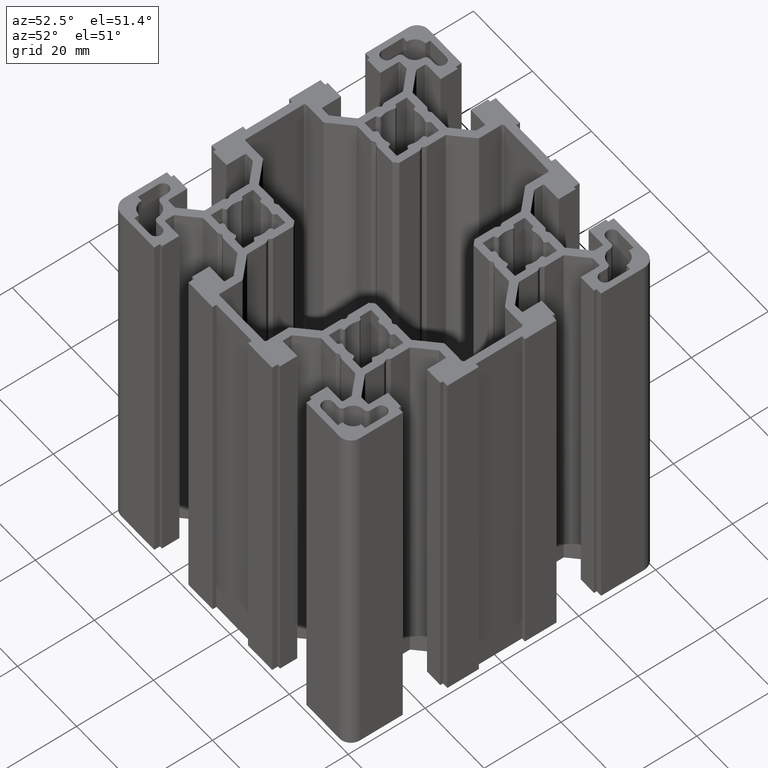
[diagram: clean part render]
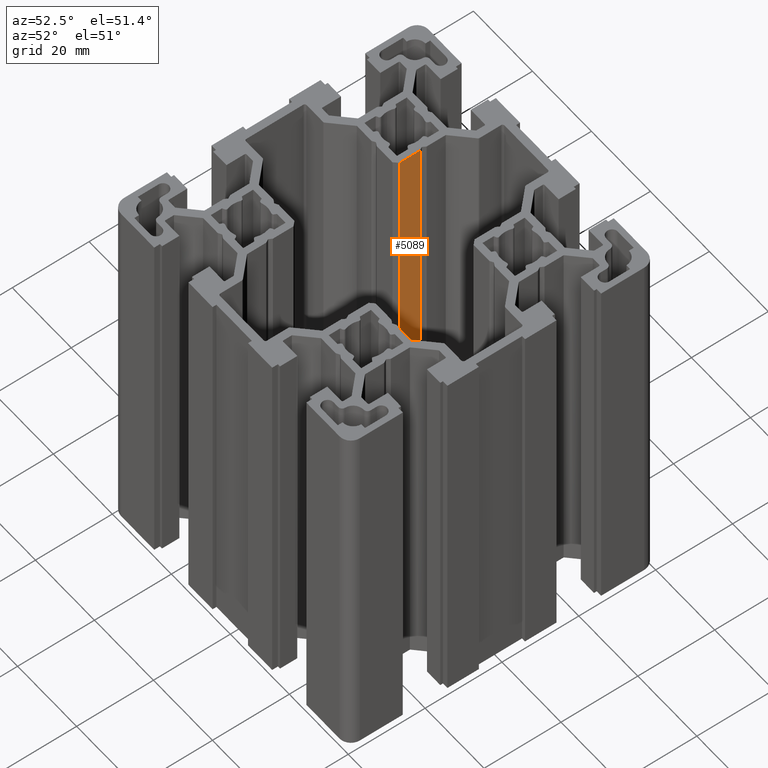
[diagram: same view with one face highlighted and labeled with its STEP entity id]
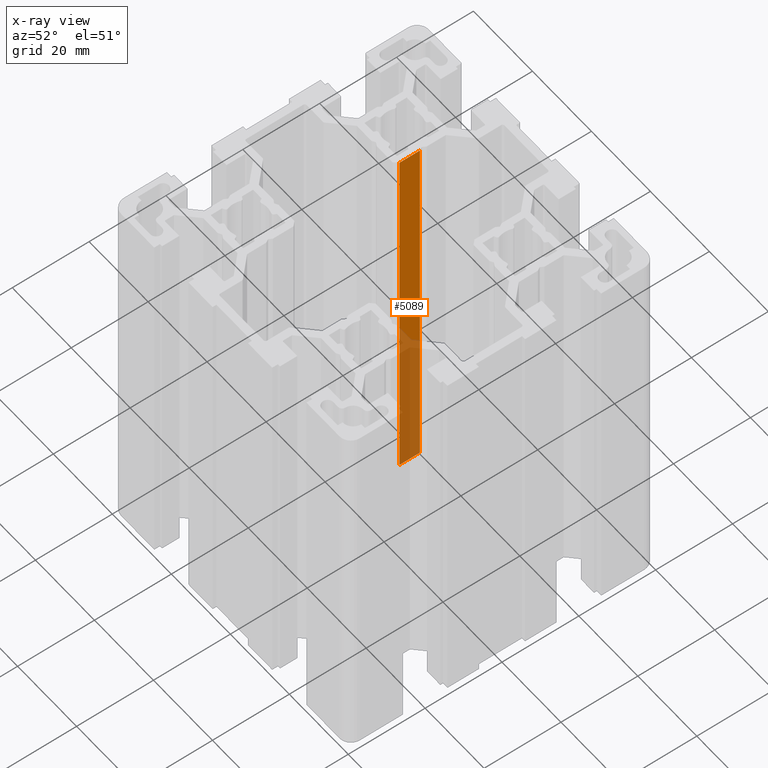
[diagram: x-ray of the same camera — body ghosted, the highlighted face saturated]
A machine part, auxiliary view. The second image highlights one B-rep face of the part: STEP entity #5089.
The next image is the same camera in x-ray: the body ghosted, the highlighted face saturated — about 40% of this face is hidden behind the body in this view.
In plain terms, the highlighted planar face has unit normal (1, 0, -0).
Its self-contained STEP definition (entity closure, byte-faithful):
#3004 = VERTEX_POINT ( 'NONE', #9092 ) ;
#3006 = VERTEX_POINT ( 'NONE', #9107 ) ;
#3012 = EDGE_CURVE ( 'NONE', #3006, #3004, #8181, .T. ) ;
#5052 = EDGE_CURVE ( 'NONE', #6267, #3006, #12111, .T. ) ;
#5088 = ORIENTED_EDGE ( 'NONE', *, *, #3012, .F. ) ;
#5089 = ADVANCED_FACE ( 'NONE', ( #12178 ), #12172, .T. ) ;
#5092 = ORIENTED_EDGE ( 'NONE', *, *, #5052, .F. ) ;
#5093 = EDGE_CURVE ( 'NONE', #6279, #3004, #12226, .T. ) ;
#5094 = ORIENTED_EDGE ( 'NONE', *, *, #6278, .T. ) ;
#5101 = ORIENTED_EDGE ( 'NONE', *, *, #5093, .T. ) ;
#5105 = EDGE_LOOP ( 'NONE', ( #5088, #5092, #5094, #5101 ) ) ;
#6267 = VERTEX_POINT ( 'NONE', #13966 ) ;
#6278 = EDGE_CURVE ( 'NONE', #6267, #6279, #13944, .T. ) ;
#6279 = VERTEX_POINT ( 'NONE', #13945 ) ;
#8181 = LINE ( 'NONE', #8397, #8602 ) ;
#8397 = CARTESIAN_POINT ( 'NONE',  ( -12.74999974236036100, 19.13397364254124300, 0.0000000000000000000 ) ) ;
#8602 = VECTOR ( 'NONE', #8630, 1000.000000000000000 ) ;
#8630 = DIRECTION ( 'NONE',  ( 0.0000000000000000000, -1.000000000000000000, 0.0000000000000000000 ) ) ;
#9092 = CARTESIAN_POINT ( 'NONE',  ( -12.74999974236036100, 13.75000000000000000, 0.0000000000000000000 ) ) ;
#9107 = CARTESIAN_POINT ( 'NONE',  ( -12.74999974236036100, 19.13397364254124300, 0.0000000000000000000 ) ) ;
#11681 = DIRECTION ( 'NONE',  ( -0.0000000000000000000, 0.0000000000000000000, -1.000000000000000000 ) ) ;
#12111 = LINE ( 'NONE', #12165, #12164 ) ;
#12139 = AXIS2_PLACEMENT_3D ( 'NONE', #12183, #12179, #11681 ) ;
#12163 = DIRECTION ( 'NONE',  ( -0.0000000000000000000, -0.0000000000000000000, -1.000000000000000000 ) ) ;
#12164 = VECTOR ( 'NONE', #12163, 1000.000000000000000 ) ;
#12165 = CARTESIAN_POINT ( 'NONE',  ( -12.74999974236036100, 19.13397364254124300, 100.0000000000000000 ) ) ;
#12172 = PLANE ( 'NONE',  #12139 ) ;
#12178 = FACE_OUTER_BOUND ( 'NONE', #5105, .T. ) ;
#12179 = DIRECTION ( 'NONE',  ( 1.000000000000000000, 0.0000000000000000000, -0.0000000000000000000 ) ) ;
#12183 = CARTESIAN_POINT ( 'NONE',  ( -12.74999974236036100, 19.13397364254124300, 100.0000000000000000 ) ) ;
#12223 = DIRECTION ( 'NONE',  ( -0.0000000000000000000, -0.0000000000000000000, -1.000000000000000000 ) ) ;
#12224 = VECTOR ( 'NONE', #12223, 1000.000000000000000 ) ;
#12225 = CARTESIAN_POINT ( 'NONE',  ( -12.74999974236036100, 13.75000000000000000, 100.0000000000000000 ) ) ;
#12226 = LINE ( 'NONE', #12225, #12224 ) ;
#13941 = DIRECTION ( 'NONE',  ( 0.0000000000000000000, -1.000000000000000000, 0.0000000000000000000 ) ) ;
#13942 = VECTOR ( 'NONE', #13941, 1000.000000000000000 ) ;
#13943 = CARTESIAN_POINT ( 'NONE',  ( -12.74999974236036100, 19.13397364254124300, 100.0000000000000000 ) ) ;
#13944 = LINE ( 'NONE', #13943, #13942 ) ;
#13945 = CARTESIAN_POINT ( 'NONE',  ( -12.74999974236036100, 13.75000000000000000, 100.0000000000000000 ) ) ;
#13966 = CARTESIAN_POINT ( 'NONE',  ( -12.74999974236036100, 19.13397364254124300, 100.0000000000000000 ) ) ;